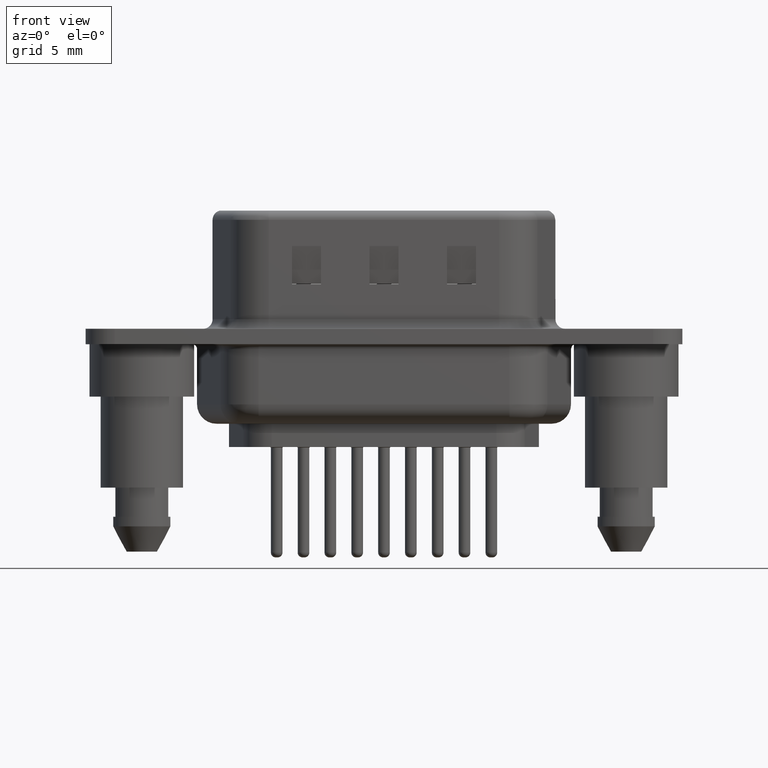
[diagram: clean part render]
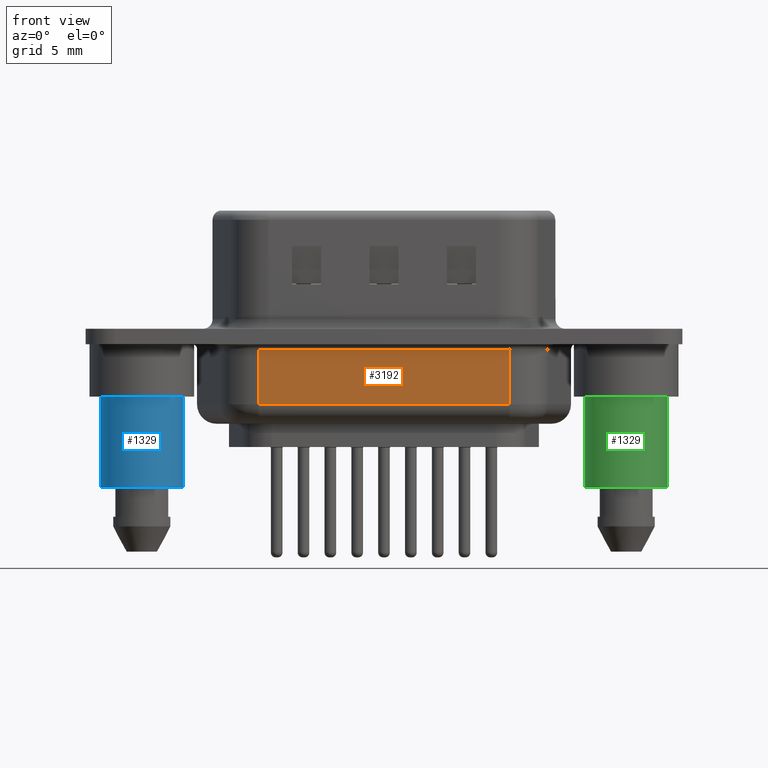
[diagram: same view with three faces highlighted in distinct colors, each labeled with its STEP entity id]
A machine part, front view with three faces highlighted in distinct colors.
Their STEP definitions:

[orange] entity #3192 — the highlighted planar face has unit normal (0, 1, 0).
#900 = CARTESIAN_POINT ( 'NONE',  ( 6.031390770746678953, -5.350000000000002309, -3.499999999999999556 ) ) ;
#1252 = CARTESIAN_POINT ( 'NONE',  ( 6.031390770746678953, -5.350000000000002309, -0.6500000000000000222 ) ) ;
#1492 = ORIENTED_EDGE ( 'NONE', *, *, #14771, .T. ) ;
#1643 = DIRECTION ( 'NONE',  ( -0.0000000000000000000, -0.0000000000000000000, 1.000000000000000000 ) ) ;
#1661 = CARTESIAN_POINT ( 'NONE',  ( 6.031390770746678953, -5.350000000000002309, -0.6500000000000000222 ) ) ;
#2447 = CARTESIAN_POINT ( 'NONE',  ( 18.96860922925333526, -5.350000000000002309, -4.500000000000000000 ) ) ;
#2946 = LINE ( 'NONE', #3030, #7832 ) ;
#3030 = CARTESIAN_POINT ( 'NONE',  ( 6.031390770746678953, -5.350000000000002309, -4.500000000000000000 ) ) ;
#3192 = ADVANCED_FACE ( 'NONE', ( #6581 ), #5439, .F. ) ;
#3983 = VECTOR ( 'NONE', #12559, 1000.000000000000000 ) ;
#4116 = CARTESIAN_POINT ( 'NONE',  ( 6.031390770746678953, -5.350000000000002309, -3.499999999999999556 ) ) ;
#4310 = LINE ( 'NONE', #900, #13659 ) ;
#4874 = DIRECTION ( 'NONE',  ( -0.0000000000000000000, -0.0000000000000000000, 1.000000000000000000 ) ) ;
#5111 = VECTOR ( 'NONE', #4874, 1000.000000000000000 ) ;
#5439 = PLANE ( 'NONE',  #6660 ) ;
#5681 = LINE ( 'NONE', #1252, #3983 ) ;
#5740 = ORIENTED_EDGE ( 'NONE', *, *, #11822, .F. ) ;
#5830 = CARTESIAN_POINT ( 'NONE',  ( 18.96860922925333526, -5.350000000000002309, -3.499999999999999556 ) ) ;
#6019 = EDGE_CURVE ( 'NONE', #7244, #14871, #7232, .T. ) ;
#6581 = FACE_OUTER_BOUND ( 'NONE', #10100, .T. ) ;
#6660 = AXIS2_PLACEMENT_3D ( 'NONE', #10103, #12543, #11394 ) ;
#6742 = VERTEX_POINT ( 'NONE', #4116 ) ;
#7232 = LINE ( 'NONE', #2447, #5111 ) ;
#7244 = VERTEX_POINT ( 'NONE', #5830 ) ;
#7832 = VECTOR ( 'NONE', #1643, 1000.000000000000000 ) ;
#9030 = EDGE_CURVE ( 'NONE', #6742, #7244, #4310, .T. ) ;
#9643 = ORIENTED_EDGE ( 'NONE', *, *, #6019, .T. ) ;
#10100 = EDGE_LOOP ( 'NONE', ( #5740, #14053, #9643, #1492 ) ) ;
#10103 = CARTESIAN_POINT ( 'NONE',  ( 6.031390770746678953, -5.350000000000002309, -4.500000000000000000 ) ) ;
#11394 = DIRECTION ( 'NONE',  ( 0.0000000000000000000, -0.0000000000000000000, 1.000000000000000000 ) ) ;
#11412 = CARTESIAN_POINT ( 'NONE',  ( 18.96860922925333526, -5.350000000000002309, -0.6500000000000000222 ) ) ;
#11822 = EDGE_CURVE ( 'NONE', #6742, #12746, #2946, .T. ) ;
#12543 = DIRECTION ( 'NONE',  ( -0.0000000000000000000, 1.000000000000000000, 0.0000000000000000000 ) ) ;
#12559 = DIRECTION ( 'NONE',  ( -1.000000000000000000, 0.0000000000000000000, 0.0000000000000000000 ) ) ;
#12746 = VERTEX_POINT ( 'NONE', #1661 ) ;
#13659 = VECTOR ( 'NONE', #13782, 1000.000000000000000 ) ;
#13782 = DIRECTION ( 'NONE',  ( 1.000000000000000000, -0.0000000000000000000, -0.0000000000000000000 ) ) ;
#14053 = ORIENTED_EDGE ( 'NONE', *, *, #9030, .T. ) ;
#14771 = EDGE_CURVE ( 'NONE', #14871, #12746, #5681, .T. ) ;
#14871 = VERTEX_POINT ( 'NONE', #11412 ) ;

[blue] entity #1329 — the highlighted cylindrical surface (partial cylindrical patch) has radius 2.125 mm, axis along (0, 0, 1).
#79 = ORIENTED_EDGE ( 'NONE', *, *, #6071, .F. ) ;
#107 = LINE ( 'NONE', #5745, #731 ) ;
#216 = LINE ( 'NONE', #11966, #9255 ) ;
#731 = VECTOR ( 'NONE', #15062, 1000.000000000000000 ) ;
#985 = AXIS2_PLACEMENT_3D ( 'NONE', #10844, #3814, #1534 ) ;
#1329 = ADVANCED_FACE ( 'NONE', ( #10456 ), #9329, .T. ) ;
#1534 = DIRECTION ( 'NONE',  ( 1.000000000000000000, 0.0000000000000000000, 0.0000000000000000000 ) ) ;
#1920 = VERTEX_POINT ( 'NONE', #13619 ) ;
#2019 = VERTEX_POINT ( 'NONE', #2164 ) ;
#2164 = CARTESIAN_POINT ( 'NONE',  ( -2.125000000000000000, 2.602374448188125350E-16, -3.100000000000000533 ) ) ;
#3526 = DIRECTION ( 'NONE',  ( -0.0000000000000000000, -0.0000000000000000000, 1.000000000000000000 ) ) ;
#3814 = DIRECTION ( 'NONE',  ( -0.0000000000000000000, -0.0000000000000000000, 1.000000000000000000 ) ) ;
#4599 = CIRCLE ( 'NONE', #13135, 2.125000000000000000 ) ;
#5442 = EDGE_CURVE ( 'NONE', #11932, #2019, #107, .T. ) ;
#5745 = CARTESIAN_POINT ( 'NONE',  ( -2.125000000000000000, 2.602374448188125350E-16, 0.5806333143474410319 ) ) ;
#6071 = EDGE_CURVE ( 'NONE', #2019, #1920, #8274, .T. ) ;
#7052 = EDGE_CURVE ( 'NONE', #14239, #1920, #216, .T. ) ;
#7093 = EDGE_CURVE ( 'NONE', #11932, #14239, #4599, .T. ) ;
#8172 = DIRECTION ( 'NONE',  ( 1.000000000000000000, 0.0000000000000000000, 0.0000000000000000000 ) ) ;
#8274 = CIRCLE ( 'NONE', #985, 2.125000000000000000 ) ;
#8376 = DIRECTION ( 'NONE',  ( -0.0000000000000000000, -0.0000000000000000000, 1.000000000000000000 ) ) ;
#8446 = DIRECTION ( 'NONE',  ( -0.0000000000000000000, -0.0000000000000000000, 1.000000000000000000 ) ) ;
#9255 = VECTOR ( 'NONE', #8446, 1000.000000000000000 ) ;
#9329 = CYLINDRICAL_SURFACE ( 'NONE', #11812, 2.125000000000000000 ) ;
#10456 = FACE_OUTER_BOUND ( 'NONE', #14067, .T. ) ;
#10844 = CARTESIAN_POINT ( 'NONE',  ( 0.0000000000000000000, 0.0000000000000000000, -3.100000000000000533 ) ) ;
#11538 = ORIENTED_EDGE ( 'NONE', *, *, #7052, .T. ) ;
#11812 = AXIS2_PLACEMENT_3D ( 'NONE', #13982, #3526, #8172 ) ;
#11932 = VERTEX_POINT ( 'NONE', #14211 ) ;
#11966 = CARTESIAN_POINT ( 'NONE',  ( 2.125000000000000000, 0.0000000000000000000, 0.5806333143474410319 ) ) ;
#12048 = CARTESIAN_POINT ( 'NONE',  ( 0.0000000000000000000, 0.0000000000000000000, -7.800000000000001599 ) ) ;
#12830 = ORIENTED_EDGE ( 'NONE', *, *, #7093, .T. ) ;
#13034 = DIRECTION ( 'NONE',  ( 1.000000000000000000, 0.0000000000000000000, 0.0000000000000000000 ) ) ;
#13135 = AXIS2_PLACEMENT_3D ( 'NONE', #12048, #8376, #13034 ) ;
#13619 = CARTESIAN_POINT ( 'NONE',  ( 2.125000000000000000, 0.0000000000000000000, -3.100000000000000533 ) ) ;
#13982 = CARTESIAN_POINT ( 'NONE',  ( 0.0000000000000000000, 0.0000000000000000000, 0.5806333143474410319 ) ) ;
#14067 = EDGE_LOOP ( 'NONE', ( #15030, #12830, #11538, #79 ) ) ;
#14211 = CARTESIAN_POINT ( 'NONE',  ( -2.125000000000000000, 2.602374448188125350E-16, -7.800000000000001599 ) ) ;
#14239 = VERTEX_POINT ( 'NONE', #14862 ) ;
#14862 = CARTESIAN_POINT ( 'NONE',  ( 2.125000000000000000, 0.0000000000000000000, -7.800000000000001599 ) ) ;
#15030 = ORIENTED_EDGE ( 'NONE', *, *, #5442, .F. ) ;
#15062 = DIRECTION ( 'NONE',  ( -0.0000000000000000000, -0.0000000000000000000, 1.000000000000000000 ) ) ;

[green] entity #1329 — the highlighted cylindrical surface (partial cylindrical patch) has radius 2.125 mm, axis along (0, 0, 1).
#79 = ORIENTED_EDGE ( 'NONE', *, *, #6071, .F. ) ;
#107 = LINE ( 'NONE', #5745, #731 ) ;
#216 = LINE ( 'NONE', #11966, #9255 ) ;
#731 = VECTOR ( 'NONE', #15062, 1000.000000000000000 ) ;
#985 = AXIS2_PLACEMENT_3D ( 'NONE', #10844, #3814, #1534 ) ;
#1329 = ADVANCED_FACE ( 'NONE', ( #10456 ), #9329, .T. ) ;
#1534 = DIRECTION ( 'NONE',  ( 1.000000000000000000, 0.0000000000000000000, 0.0000000000000000000 ) ) ;
#1920 = VERTEX_POINT ( 'NONE', #13619 ) ;
#2019 = VERTEX_POINT ( 'NONE', #2164 ) ;
#2164 = CARTESIAN_POINT ( 'NONE',  ( -2.125000000000000000, 2.602374448188125350E-16, -3.100000000000000533 ) ) ;
#3526 = DIRECTION ( 'NONE',  ( -0.0000000000000000000, -0.0000000000000000000, 1.000000000000000000 ) ) ;
#3814 = DIRECTION ( 'NONE',  ( -0.0000000000000000000, -0.0000000000000000000, 1.000000000000000000 ) ) ;
#4599 = CIRCLE ( 'NONE', #13135, 2.125000000000000000 ) ;
#5442 = EDGE_CURVE ( 'NONE', #11932, #2019, #107, .T. ) ;
#5745 = CARTESIAN_POINT ( 'NONE',  ( -2.125000000000000000, 2.602374448188125350E-16, 0.5806333143474410319 ) ) ;
#6071 = EDGE_CURVE ( 'NONE', #2019, #1920, #8274, .T. ) ;
#7052 = EDGE_CURVE ( 'NONE', #14239, #1920, #216, .T. ) ;
#7093 = EDGE_CURVE ( 'NONE', #11932, #14239, #4599, .T. ) ;
#8172 = DIRECTION ( 'NONE',  ( 1.000000000000000000, 0.0000000000000000000, 0.0000000000000000000 ) ) ;
#8274 = CIRCLE ( 'NONE', #985, 2.125000000000000000 ) ;
#8376 = DIRECTION ( 'NONE',  ( -0.0000000000000000000, -0.0000000000000000000, 1.000000000000000000 ) ) ;
#8446 = DIRECTION ( 'NONE',  ( -0.0000000000000000000, -0.0000000000000000000, 1.000000000000000000 ) ) ;
#9255 = VECTOR ( 'NONE', #8446, 1000.000000000000000 ) ;
#9329 = CYLINDRICAL_SURFACE ( 'NONE', #11812, 2.125000000000000000 ) ;
#10456 = FACE_OUTER_BOUND ( 'NONE', #14067, .T. ) ;
#10844 = CARTESIAN_POINT ( 'NONE',  ( 0.0000000000000000000, 0.0000000000000000000, -3.100000000000000533 ) ) ;
#11538 = ORIENTED_EDGE ( 'NONE', *, *, #7052, .T. ) ;
#11812 = AXIS2_PLACEMENT_3D ( 'NONE', #13982, #3526, #8172 ) ;
#11932 = VERTEX_POINT ( 'NONE', #14211 ) ;
#11966 = CARTESIAN_POINT ( 'NONE',  ( 2.125000000000000000, 0.0000000000000000000, 0.5806333143474410319 ) ) ;
#12048 = CARTESIAN_POINT ( 'NONE',  ( 0.0000000000000000000, 0.0000000000000000000, -7.800000000000001599 ) ) ;
#12830 = ORIENTED_EDGE ( 'NONE', *, *, #7093, .T. ) ;
#13034 = DIRECTION ( 'NONE',  ( 1.000000000000000000, 0.0000000000000000000, 0.0000000000000000000 ) ) ;
#13135 = AXIS2_PLACEMENT_3D ( 'NONE', #12048, #8376, #13034 ) ;
#13619 = CARTESIAN_POINT ( 'NONE',  ( 2.125000000000000000, 0.0000000000000000000, -3.100000000000000533 ) ) ;
#13982 = CARTESIAN_POINT ( 'NONE',  ( 0.0000000000000000000, 0.0000000000000000000, 0.5806333143474410319 ) ) ;
#14067 = EDGE_LOOP ( 'NONE', ( #15030, #12830, #11538, #79 ) ) ;
#14211 = CARTESIAN_POINT ( 'NONE',  ( -2.125000000000000000, 2.602374448188125350E-16, -7.800000000000001599 ) ) ;
#14239 = VERTEX_POINT ( 'NONE', #14862 ) ;
#14862 = CARTESIAN_POINT ( 'NONE',  ( 2.125000000000000000, 0.0000000000000000000, -7.800000000000001599 ) ) ;
#15030 = ORIENTED_EDGE ( 'NONE', *, *, #5442, .F. ) ;
#15062 = DIRECTION ( 'NONE',  ( -0.0000000000000000000, -0.0000000000000000000, 1.000000000000000000 ) ) ;